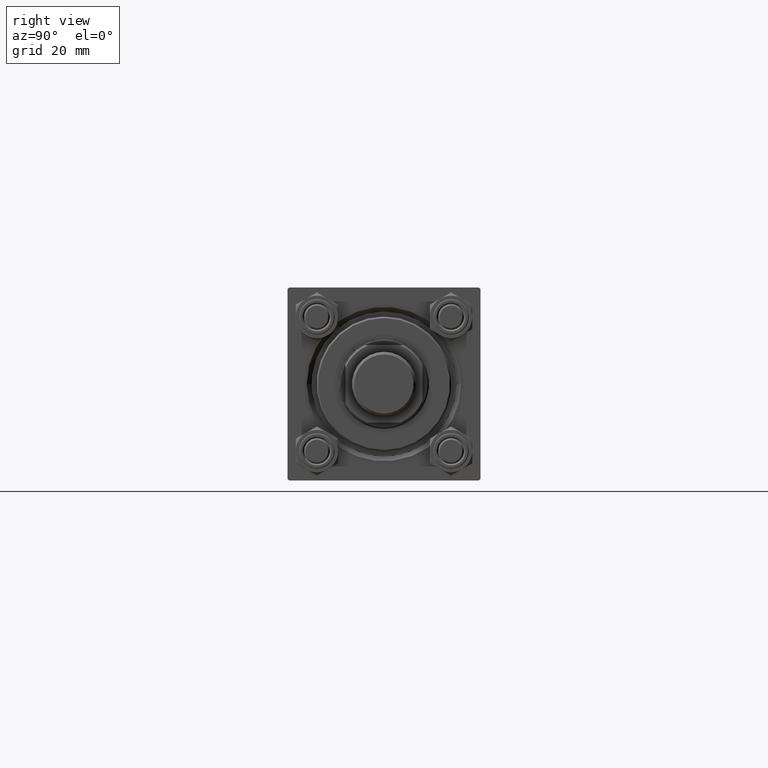
[diagram: clean part render]
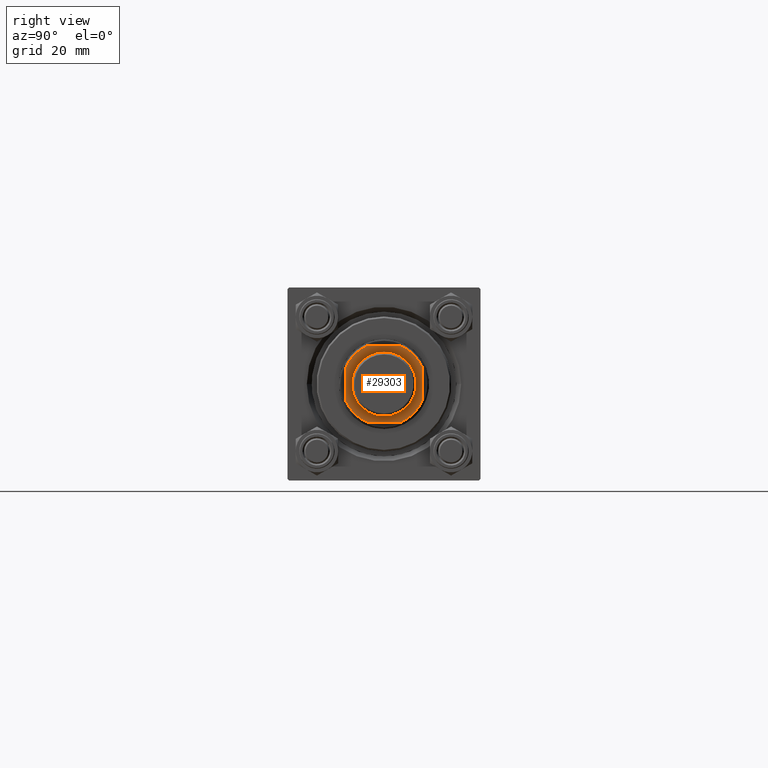
[diagram: same view with one face highlighted and labeled with its STEP entity id]
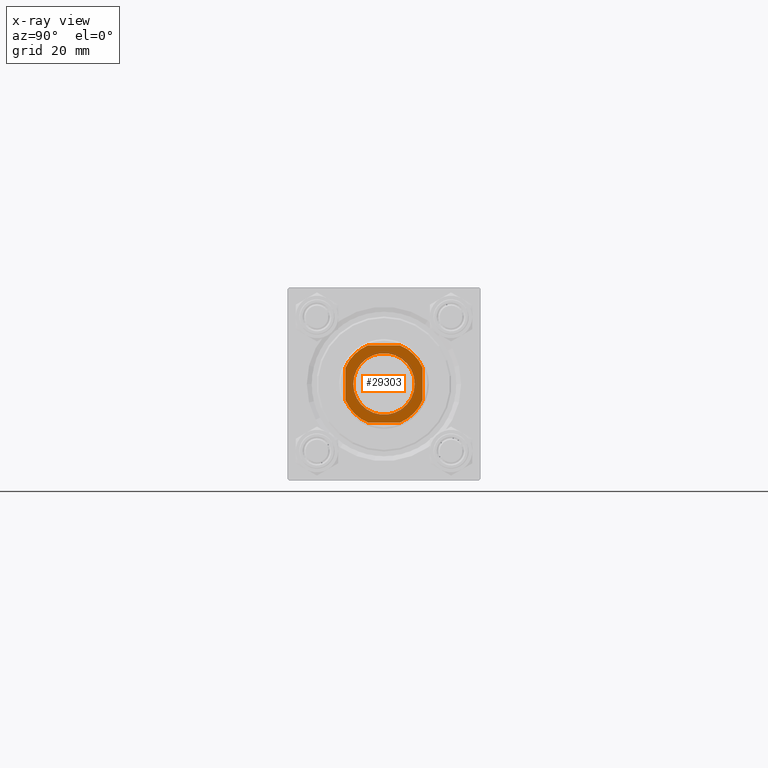
[diagram: x-ray of the same camera — body ghosted, the highlighted face saturated]
A machine part, right view. The second image highlights one B-rep face of the part: STEP entity #29303.
The next image is the same camera in x-ray: the body ghosted, the highlighted face saturated — about 0% of this face is hidden behind the body in this view.
In plain terms, the highlighted planar face has unit normal (1, 0, -0).
Its self-contained STEP definition (entity closure, byte-faithful):
#99 = FACE_BOUND ( 'NONE', #46518, .T. ) ;
#157 = VECTOR ( 'NONE', #20890, 1000.000000000000000 ) ;
#692 = ORIENTED_EDGE ( 'NONE', *, *, #46141, .T. ) ;
#1525 = ORIENTED_EDGE ( 'NONE', *, *, #23516, .T. ) ;
#1997 = CARTESIAN_POINT ( 'NONE',  ( 11.99999999999999822, 4.999999999999993783, 112.9999999999999858 ) ) ;
#2326 = VERTEX_POINT ( 'NONE', #28234 ) ;
#2429 = LINE ( 'NONE', #13025, #36932 ) ;
#2751 = EDGE_CURVE ( 'NONE', #33383, #2326, #22525, .T. ) ;
#2782 = CARTESIAN_POINT ( 'NONE',  ( -11.99999999999999822, -12.00000000000000355, 112.9999999999999858 ) ) ;
#3899 = DIRECTION ( 'NONE',  ( 1.000000000000000000, 0.000000000000000000, 0.000000000000000000 ) ) ;
#4636 = VERTEX_POINT ( 'NONE', #43821 ) ;
#4721 = DIRECTION ( 'NONE',  ( 0.000000000000000000, -0.000000000000000000, -1.000000000000000000 ) ) ;
#5967 = AXIS2_PLACEMENT_3D ( 'NONE', #7943, #39469, #7717 ) ;
#5987 = CARTESIAN_POINT ( 'NONE',  ( -12.00000000000000000, -4.999999999999980460, 112.9999999999999858 ) ) ;
#7353 = DIRECTION ( 'NONE',  ( -0.000000000000000000, 0.000000000000000000, 1.000000000000000000 ) ) ;
#7717 = DIRECTION ( 'NONE',  ( 1.000000000000000000, 0.000000000000000000, 0.000000000000000000 ) ) ;
#7940 = ORIENTED_EDGE ( 'NONE', *, *, #41905, .T. ) ;
#7943 = CARTESIAN_POINT ( 'NONE',  ( 0.000000000000000000, 0.000000000000000000, 112.9999999999999858 ) ) ;
#9129 = ORIENTED_EDGE ( 'NONE', *, *, #22825, .T. ) ;
#9642 = AXIS2_PLACEMENT_3D ( 'NONE', #43366, #21731, #10911 ) ;
#10259 = EDGE_CURVE ( 'NONE', #4636, #16095, #13919, .T. ) ;
#10911 = DIRECTION ( 'NONE',  ( 1.000000000000000000, 0.000000000000000000, 0.000000000000000000 ) ) ;
#11061 = EDGE_CURVE ( 'NONE', #2326, #41038, #2429, .T. ) ;
#11378 = CARTESIAN_POINT ( 'NONE',  ( 11.99999999999999645, 11.99999999999999645, 112.9999999999999858 ) ) ;
#12684 = ORIENTED_EDGE ( 'NONE', *, *, #2751, .T. ) ;
#12796 = VERTEX_POINT ( 'NONE', #26895 ) ;
#13025 = CARTESIAN_POINT ( 'NONE',  ( -12.00000000000000000, 11.99999999999999645, 112.9999999999999858 ) ) ;
#13237 = AXIS2_PLACEMENT_3D ( 'NONE', #14650, #7353, #42634 ) ;
#13288 = ORIENTED_EDGE ( 'NONE', *, *, #11061, .T. ) ;
#13443 = VERTEX_POINT ( 'NONE', #20623 ) ;
#13607 = LINE ( 'NONE', #2782, #157 ) ;
#13919 = LINE ( 'NONE', #28502, #41393 ) ;
#14650 = CARTESIAN_POINT ( 'NONE',  ( 0.000000000000000000, 0.000000000000000000, 112.9999999999999858 ) ) ;
#14688 = DIRECTION ( 'NONE',  ( -0.000000000000000000, 0.000000000000000000, 1.000000000000000000 ) ) ;
#15865 = AXIS2_PLACEMENT_3D ( 'NONE', #32950, #4721, #21893 ) ;
#16095 = VERTEX_POINT ( 'NONE', #5987 ) ;
#16245 = CIRCLE ( 'NONE', #44773, 12.99999999999999289 ) ;
#18446 = PLANE ( 'NONE',  #31326 ) ;
#20197 = CARTESIAN_POINT ( 'NONE',  ( 0.000000000000000000, 0.000000000000000000, 112.9999999999999858 ) ) ;
#20623 = CARTESIAN_POINT ( 'NONE',  ( 9.550000000000002487, 0.000000000000000000, 112.9999999999999858 ) ) ;
#20890 = DIRECTION ( 'NONE',  ( 1.000000000000000000, 0.000000000000000000, 0.000000000000000000 ) ) ;
#21109 = CIRCLE ( 'NONE', #15865, 9.550000000000002487 ) ;
#21731 = DIRECTION ( 'NONE',  ( -0.000000000000000000, 0.000000000000000000, 1.000000000000000000 ) ) ;
#21893 = DIRECTION ( 'NONE',  ( 1.000000000000000000, 0.000000000000000000, 0.000000000000000000 ) ) ;
#22525 = CIRCLE ( 'NONE', #5967, 12.99999999999999645 ) ;
#22825 = EDGE_CURVE ( 'NONE', #16095, #26520, #16245, .T. ) ;
#23027 = CIRCLE ( 'NONE', #41782, 9.550000000000002487 ) ;
#23516 = EDGE_CURVE ( 'NONE', #41038, #4636, #34304, .T. ) ;
#23524 = DIRECTION ( 'NONE',  ( -0.000000000000000000, 0.000000000000000000, 1.000000000000000000 ) ) ;
#24758 = DIRECTION ( 'NONE',  ( -1.000000000000000000, -0.000000000000000000, -0.000000000000000000 ) ) ;
#25028 = LINE ( 'NONE', #11378, #30171 ) ;
#25303 = DIRECTION ( 'NONE',  ( 0.000000000000000000, -0.000000000000000000, -1.000000000000000000 ) ) ;
#25776 = CARTESIAN_POINT ( 'NONE',  ( 0.000000000000000000, 0.000000000000000000, 112.9999999999999858 ) ) ;
#26425 = CARTESIAN_POINT ( 'NONE',  ( -4.999999999999971578, -12.00000000000000355, 112.9999999999999858 ) ) ;
#26520 = VERTEX_POINT ( 'NONE', #26425 ) ;
#26895 = CARTESIAN_POINT ( 'NONE',  ( 4.999999999999971578, -12.00000000000000355, 112.9999999999999858 ) ) ;
#27761 = ORIENTED_EDGE ( 'NONE', *, *, #10259, .T. ) ;
#28234 = CARTESIAN_POINT ( 'NONE',  ( 4.999999999999997335, 11.99999999999999645, 112.9999999999999858 ) ) ;
#28502 = CARTESIAN_POINT ( 'NONE',  ( -12.00000000000000000, 11.99999999999999645, 112.9999999999999858 ) ) ;
#28803 = DIRECTION ( 'NONE',  ( 1.000000000000000000, 0.000000000000000000, 0.000000000000000000 ) ) ;
#29303 = ADVANCED_FACE ( 'NONE', ( #99, #36082 ), #18446, .T. ) ;
#29931 = ORIENTED_EDGE ( 'NONE', *, *, #43565, .T. ) ;
#29996 = ORIENTED_EDGE ( 'NONE', *, *, #43925, .T. ) ;
#30111 = DIRECTION ( 'NONE',  ( 1.000000000000000000, 0.000000000000000000, 0.000000000000000000 ) ) ;
#30171 = VECTOR ( 'NONE', #39137, 1000.000000000000000 ) ;
#31082 = VERTEX_POINT ( 'NONE', #35664 ) ;
#31326 = AXIS2_PLACEMENT_3D ( 'NONE', #36560, #14688, #28803 ) ;
#32523 = EDGE_CURVE ( 'NONE', #12796, #31082, #34464, .T. ) ;
#32950 = CARTESIAN_POINT ( 'NONE',  ( 0.000000000000000000, 0.000000000000000000, 112.9999999999999858 ) ) ;
#33354 = VERTEX_POINT ( 'NONE', #36582 ) ;
#33383 = VERTEX_POINT ( 'NONE', #1997 ) ;
#34260 = ORIENTED_EDGE ( 'NONE', *, *, #32523, .T. ) ;
#34304 = CIRCLE ( 'NONE', #13237, 13.00000000000001066 ) ;
#34464 = CIRCLE ( 'NONE', #9642, 12.99999999999999289 ) ;
#35664 = CARTESIAN_POINT ( 'NONE',  ( 12.00000000000000178, -4.999999999999976907, 112.9999999999999858 ) ) ;
#36001 = EDGE_LOOP ( 'NONE', ( #29931, #12684, #13288, #1525, #27761, #9129, #29996, #34260 ) ) ;
#36082 = FACE_OUTER_BOUND ( 'NONE', #36001, .T. ) ;
#36560 = CARTESIAN_POINT ( 'NONE',  ( 0.000000000000000000, 0.000000000000000000, 112.9999999999999858 ) ) ;
#36582 = CARTESIAN_POINT ( 'NONE',  ( -9.550000000000002487, 1.169537693185722558E-15, 112.9999999999999858 ) ) ;
#36932 = VECTOR ( 'NONE', #24758, 1000.000000000000000 ) ;
#39137 = DIRECTION ( 'NONE',  ( -2.891205793294678326E-16, 1.000000000000000000, -0.000000000000000000 ) ) ;
#39469 = DIRECTION ( 'NONE',  ( -0.000000000000000000, 0.000000000000000000, 1.000000000000000000 ) ) ;
#40033 = DIRECTION ( 'NONE',  ( 7.228014483236695816E-17, -1.000000000000000000, 0.000000000000000000 ) ) ;
#40914 = CARTESIAN_POINT ( 'NONE',  ( -5.000000000000039080, 11.99999999999999645, 112.9999999999999858 ) ) ;
#41038 = VERTEX_POINT ( 'NONE', #40914 ) ;
#41393 = VECTOR ( 'NONE', #40033, 1000.000000000000000 ) ;
#41782 = AXIS2_PLACEMENT_3D ( 'NONE', #25776, #25303, #3899 ) ;
#41905 = EDGE_CURVE ( 'NONE', #33354, #13443, #21109, .T. ) ;
#42634 = DIRECTION ( 'NONE',  ( 1.000000000000000000, 0.000000000000000000, 0.000000000000000000 ) ) ;
#43366 = CARTESIAN_POINT ( 'NONE',  ( 0.000000000000000000, 0.000000000000000000, 112.9999999999999858 ) ) ;
#43565 = EDGE_CURVE ( 'NONE', #31082, #33383, #25028, .T. ) ;
#43821 = CARTESIAN_POINT ( 'NONE',  ( -12.00000000000000000, 5.000000000000031086, 112.9999999999999858 ) ) ;
#43925 = EDGE_CURVE ( 'NONE', #26520, #12796, #13607, .T. ) ;
#44773 = AXIS2_PLACEMENT_3D ( 'NONE', #20197, #23524, #30111 ) ;
#46141 = EDGE_CURVE ( 'NONE', #13443, #33354, #23027, .T. ) ;
#46518 = EDGE_LOOP ( 'NONE', ( #692, #7940 ) ) ;